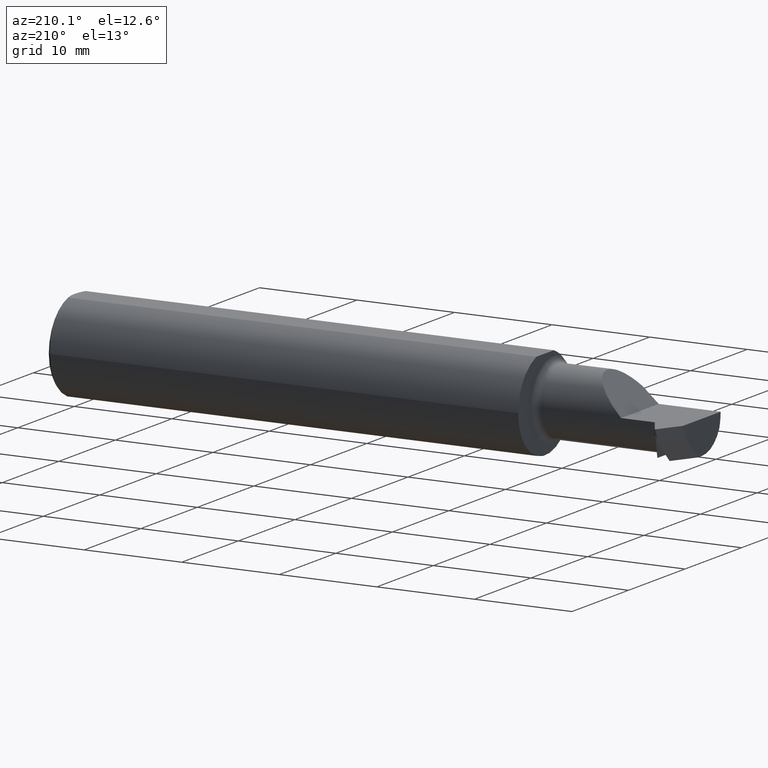
[diagram: clean part render]
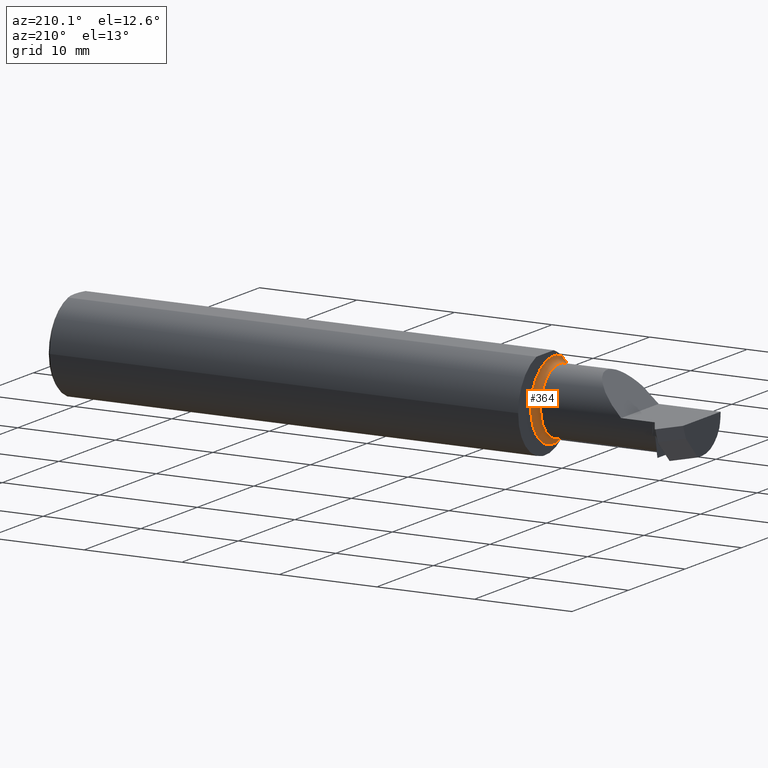
[diagram: same view with one face highlighted and labeled with its STEP entity id]
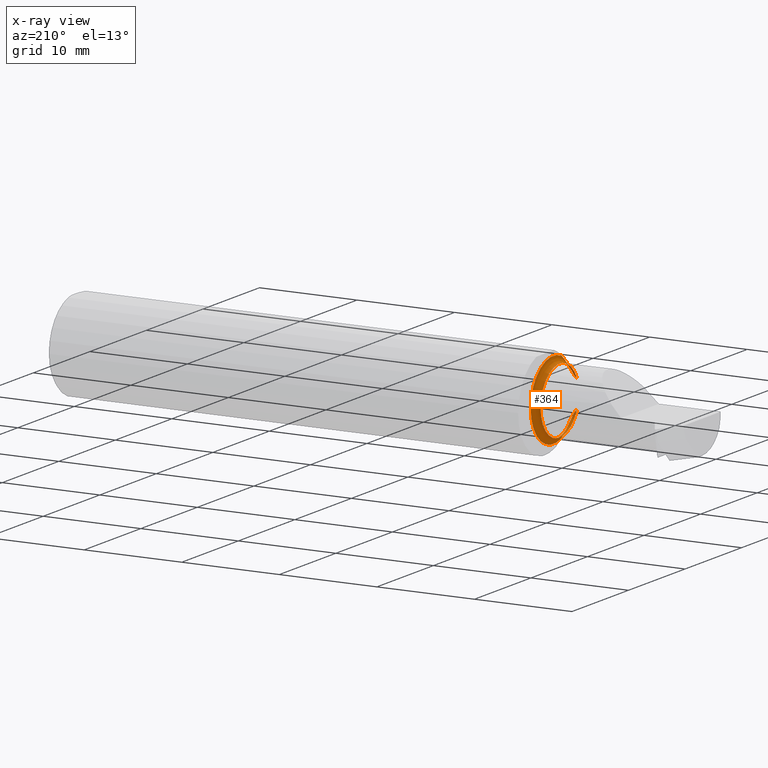
[diagram: x-ray of the same camera — body ghosted, the highlighted face saturated]
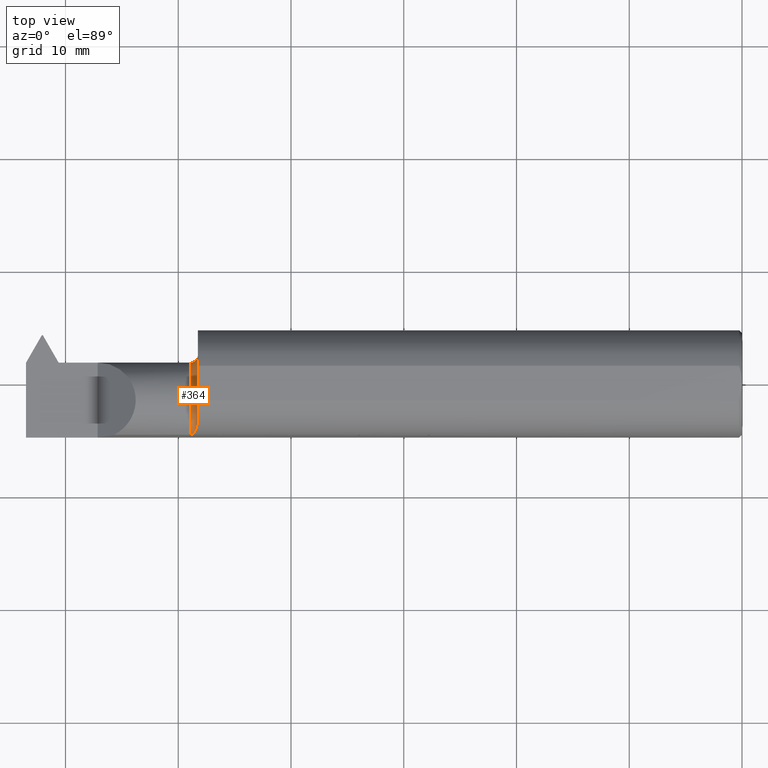
[diagram: same view with one face highlighted and labeled with its STEP entity id]
A machine part, auxiliary view. The second image highlights one B-rep face of the part: STEP entity #364.
The next image is the same camera in x-ray: the body ghosted, the highlighted face saturated — about 1% of this face is hidden behind the body in this view.
A second angle (top view) of the same face is appended — the face is thin or edge-on in the first view.
In plain terms, the highlighted toroidal blend (fillet) surface has major radius 4.0132 mm and minor (blend) radius 0.635 mm.
Its self-contained STEP definition (entity closure, byte-faithful):
#5 = ORIENTED_EDGE ( 'NONE', *, *, #599, .F. ) ;
#15 = CIRCLE ( 'NONE', #576, 0.1580000000000002791 ) ;
#17 = CARTESIAN_POINT ( 'NONE',  ( -1.925000000000000044, -0.05835000000000008930, 0.000000000000000000 ) ) ;
#19 = ORIENTED_EDGE ( 'NONE', *, *, #299, .F. ) ;
#33 = CARTESIAN_POINT ( 'NONE',  ( -1.922655856876659186, -0.1781552959227971356, 0.05797775639605650538 ) ) ;
#52 = CARTESIAN_POINT ( 'NONE',  ( -1.900459820461650740, -0.1306920593655933049, 0.1345866223284674645 ) ) ;
#54 = EDGE_LOOP ( 'NONE', ( #188, #432, #19, #5 ) ) ;
#60 = CARTESIAN_POINT ( 'NONE',  ( -1.925000000000000044, -0.1783697086546690569, -0.05730854678360337157 ) ) ;
#87 = B_SPLINE_CURVE_WITH_KNOTS ( 'NONE', 3,
 ( #60, #259, #332, #206, #812, #604, #265, #338, #598, #735, #809, #661, #520, #274 ),
 .UNSPECIFIED., .F., .F.,
 ( 4, 2, 2, 2, 2, 2, 4 ),
 ( 1.965724206509027427E-07, 9.384097494424281942E-05, 0.0001874853774678347513, 0.0003747741825150180460, 0.0007493517926093751485, 0.001498507012798095100, 0.002996817453175537171 ),
 .UNSPECIFIED. ) ;
#105 = CARTESIAN_POINT ( 'NONE',  ( -1.899999999999978817, -0.1236042208122531821, 0.1411207813207416562 ) ) ;
#110 = CARTESIAN_POINT ( 'NONE',  ( -1.920882408083194992, -0.1776276410483740853, 0.05957475000073310378 ) ) ;
#128 = EDGE_CURVE ( 'NONE', #583, #187, #87, .T. ) ;
#178 = EDGE_CURVE ( 'NONE', #679, #187, #15, .T. ) ;
#187 = VERTEX_POINT ( 'NONE', #419 ) ;
#188 = ORIENTED_EDGE ( 'NONE', *, *, #178, .T. ) ;
#206 = CARTESIAN_POINT ( 'NONE',  ( -1.920855552425395851, -0.1776175334603393441, -0.05960499283471037274 ) ) ;
#228 = AXIS2_PLACEMENT_3D ( 'NONE', #17, #762, #287 ) ;
#239 = CIRCLE ( 'NONE', #228, 0.1330000000000003124 ) ;
#246 = CARTESIAN_POINT ( 'NONE',  ( -1.918195961774018965, -0.1762973784583063419, 0.06343092843766089117 ) ) ;
#259 = CARTESIAN_POINT ( 'NONE',  ( -1.923749915749442874, -0.1783697086546684740, -0.05730854678360473159 ) ) ;
#265 = CARTESIAN_POINT ( 'NONE',  ( -1.917141984682263933, -0.1755174329696179703, -0.06556455082929076028 ) ) ;
#274 = CARTESIAN_POINT ( 'NONE',  ( -1.900000000000000133, -0.1160303770351314295, -0.1470951192429074961 ) ) ;
#287 = DIRECTION ( 'NONE',  ( 0.000000000000000000, -1.000000000000000000, 0.000000000000000000 ) ) ;
#288 = DIRECTION ( 'NONE',  ( -9.108622265535208572E-17, -1.000000000000000000, 0.000000000000000000 ) ) ;
#299 = EDGE_CURVE ( 'NONE', #487, #583, #239, .T. ) ;
#321 = CARTESIAN_POINT ( 'NONE',  ( -1.925000000000000044, -0.1783697086546690846, 0.05730854678360332299 ) ) ;
#332 = CARTESIAN_POINT ( 'NONE',  ( -1.922632702519553982, -0.1781504652642079689, -0.05799271583144612746 ) ) ;
#338 = CARTESIAN_POINT ( 'NONE',  ( -1.914331470962522097, -0.1730809661842615810, -0.07185561948439798952 ) ) ;
#343 = DIRECTION ( 'NONE',  ( 0.000000000000000000, -1.000000000000000000, 0.000000000000000000 ) ) ;
#364 = ADVANCED_FACE ( 'NONE', ( #627 ), #573, .F. ) ;
#377 = CARTESIAN_POINT ( 'NONE',  ( -1.914343418362526306, -0.1730952584121029925, 0.07182162584506007752 ) ) ;
#385 = CARTESIAN_POINT ( 'NONE',  ( -1.900000000000000133, -0.1160303770344977697, 0.1470951192431559917 ) ) ;
#400 = DIRECTION ( 'NONE',  ( -1.000000000000000000, 9.108622265535208572E-17, -0.000000000000000000 ) ) ;
#419 = CARTESIAN_POINT ( 'NONE',  ( -1.900000000000000133, -0.1160303770351314295, -0.1470951192429074961 ) ) ;
#426 = DIRECTION ( 'NONE',  ( -1.000000000000000000, 9.108622265535208572E-17, -0.000000000000000000 ) ) ;
#431 = CARTESIAN_POINT ( 'NONE',  ( -1.908844572613942692, -0.1652240583778483984, 0.08882027308812269484 ) ) ;
#432 = ORIENTED_EDGE ( 'NONE', *, *, #128, .F. ) ;
#464 = CARTESIAN_POINT ( 'NONE',  ( -1.900000000000000133, -0.1160303770344977697, 0.1470951192431559917 ) ) ;
#466 = CARTESIAN_POINT ( 'NONE',  ( -1.900000000000000133, -0.05835000000000008930, 0.000000000000000000 ) ) ;
#487 = VERTEX_POINT ( 'NONE', #623 ) ;
#501 = CARTESIAN_POINT ( 'NONE',  ( -1.912861924135736080, -0.1712588160411456784, 0.07610809679501794045 ) ) ;
#520 = CARTESIAN_POINT ( 'NONE',  ( -1.899999999999999689, -0.1312984737625741694, -0.1350514632126313674 ) ) ;
#525 = AXIS2_PLACEMENT_3D ( 'NONE', #552, #426, #288 ) ;
#552 = CARTESIAN_POINT ( 'NONE',  ( -1.925000000000000044, -0.05835000000000011011, 0.000000000000000000 ) ) ;
#573 = TOROIDAL_SURFACE ( 'NONE', #525, 0.1580000000000002791, 0.02499999999999993894 ) ;
#575 = B_SPLINE_CURVE_WITH_KNOTS ( 'NONE', 3,
 ( #385, #105, #52, #715, #724, #710, #431, #501, #377, #592, #246, #581, #110, #33, #651, #321 ),
 .UNSPECIFIED., .F., .F.,
 ( 4, 2, 2, 2, 2, 2, 2, 4 ),
 ( 0.0004765446698261347944, 0.001211022660611354648, 0.001945500651396574665, 0.002679978642181793814, 0.003047217637574406099, 0.003230837135270713326, 0.003322646884118865638, 0.003414456632967018384 ),
 .UNSPECIFIED. ) ;
#576 = AXIS2_PLACEMENT_3D ( 'NONE', #466, #400, #343 ) ;
#581 = CARTESIAN_POINT ( 'NONE',  ( -1.920156893127619169, -0.1773094052629647643, 0.06051821018283330689 ) ) ;
#583 = VERTEX_POINT ( 'NONE', #789 ) ;
#592 = CARTESIAN_POINT ( 'NONE',  ( -1.917163479082055755, -0.1755340703777922284, 0.06552011612893687831 ) ) ;
#598 = CARTESIAN_POINT ( 'NONE',  ( -1.912851115778101185, -0.1712424833498250032, -0.07614241156970250057 ) ) ;
#599 = EDGE_CURVE ( 'NONE', #679, #487, #575, .T. ) ;
#604 = CARTESIAN_POINT ( 'NONE',  ( -1.918162645443746372, -0.1762760481395239387, -0.06349063590883713415 ) ) ;
#623 = CARTESIAN_POINT ( 'NONE',  ( -1.925000000000000044, -0.1783697086546690846, 0.05730854678360332299 ) ) ;
#627 = FACE_OUTER_BOUND ( 'NONE', #54, .T. ) ;
#651 = CARTESIAN_POINT ( 'NONE',  ( -1.923764212023046261, -0.1783697086546790767, 0.05730854678357253512 ) ) ;
#661 = CARTESIAN_POINT ( 'NONE',  ( -1.901810233260115224, -0.1445504080075227515, -0.1207082908324056403 ) ) ;
#679 = VERTEX_POINT ( 'NONE', #464 ) ;
#710 = CARTESIAN_POINT ( 'NONE',  ( -1.906810654710997754, -0.1605151270935938346, 0.09708342838367754746 ) ) ;
#715 = CARTESIAN_POINT ( 'NONE',  ( -1.902207105173744139, -0.1438831799117017973, 0.1203810775392135518 ) ) ;
#724 = CARTESIAN_POINT ( 'NONE',  ( -1.903482061302840700, -0.1498697720273035328, 0.1128244190106259676 ) ) ;
#735 = CARTESIAN_POINT ( 'NONE',  ( -1.908867519642199140, -0.1652587220708474358, -0.08874743406640488164 ) ) ;
#762 = DIRECTION ( 'NONE',  ( -1.000000000000000000, 9.108622265535208572E-17, -0.000000000000000000 ) ) ;
#789 = CARTESIAN_POINT ( 'NONE',  ( -1.925000000000000044, -0.1783697086546690569, -0.05730854678360337157 ) ) ;
#809 = CARTESIAN_POINT ( 'NONE',  ( -1.906840882823497507, -0.1605979928433036719, -0.09695168669191697730 ) ) ;
#812 = CARTESIAN_POINT ( 'NONE',  ( -1.920126530293609690, -0.1772957297413635114, -0.06055838166122347321 ) ) ;